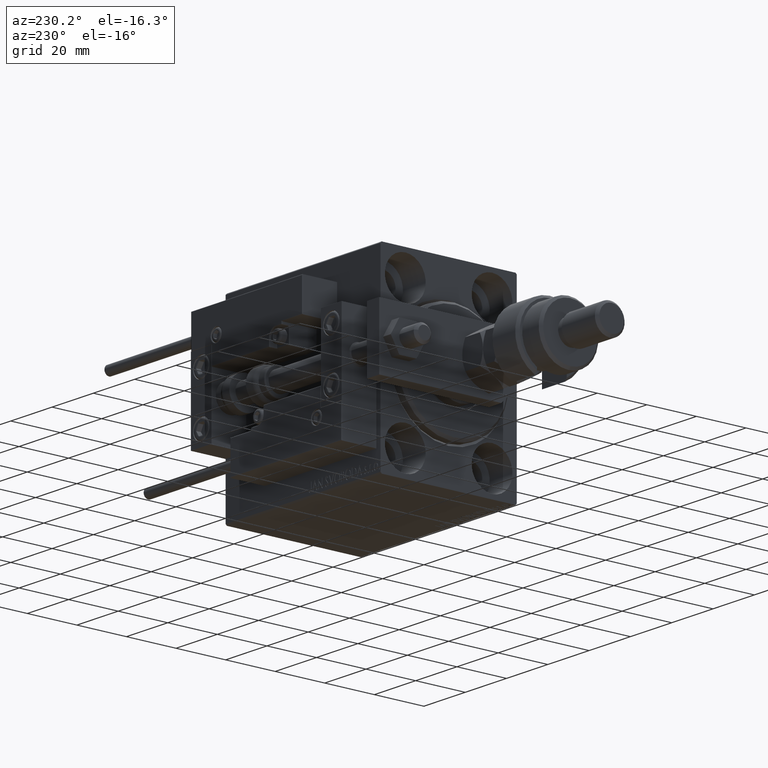
[diagram: clean part render]
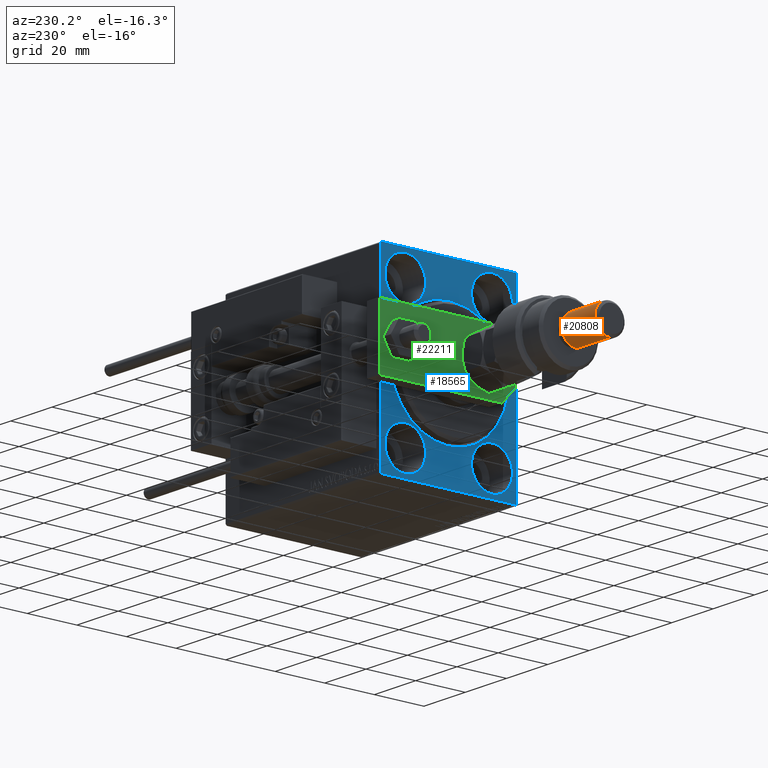
[diagram: same view with three faces highlighted in distinct colors, each labeled with its STEP entity id]
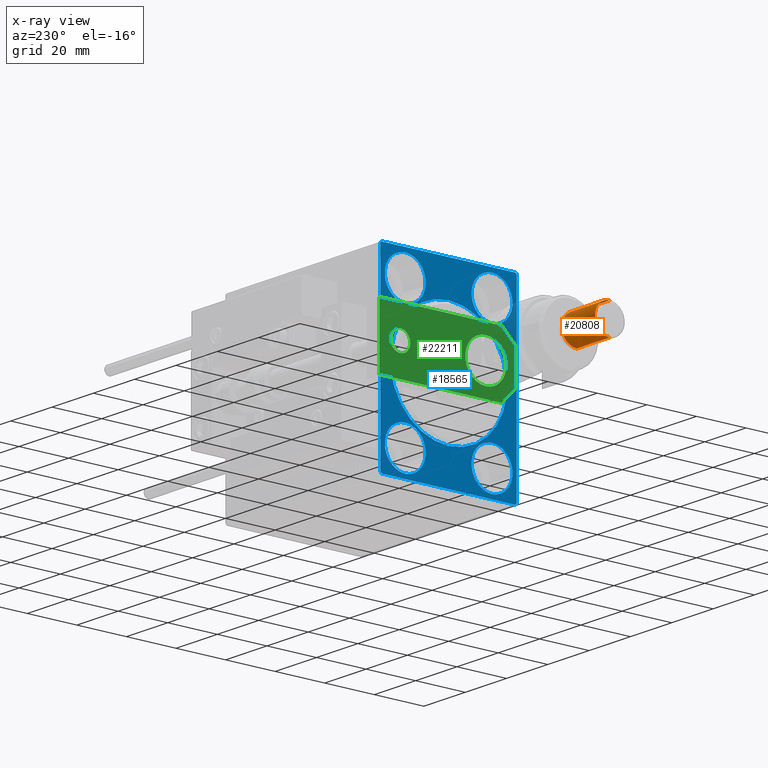
[diagram: x-ray of the same camera — body ghosted, the three highlighted faces saturated]
A machine part, auxiliary view with three faces highlighted in distinct colors.
The next image is the same camera in x-ray (body ghosted, the three faces saturated) — at least one of them is partly hidden behind the body in this view.
Their STEP definitions:

[orange] entity #20808 — the highlighted cylindrical surface (edge-blend (fillet) strip) has radius 6 mm, axis along (1, -0, -0).
#169 = LINE ( 'NONE', #20685, #19900 ) ;
#1006 = CARTESIAN_POINT ( 'NONE',  ( 6.000000000000000888, 7.347880794884120722E-16, 40.99999999999997868 ) ) ;
#1886 = CARTESIAN_POINT ( 'NONE',  ( 0.000000000000000000, 0.000000000000000000, 41.99999999999999289 ) ) ;
#3476 = CARTESIAN_POINT ( 'NONE',  ( -6.000000000000000888, 0.000000000000000000, 40.99999999999997868 ) ) ;
#3944 = EDGE_CURVE ( 'NONE', #24021, #12936, #32978, .T. ) ;
#4555 = DIRECTION ( 'NONE',  ( -0.000000000000000000, -0.000000000000000000, 1.000000000000000000 ) ) ;
#4980 = AXIS2_PLACEMENT_3D ( 'NONE', #36015, #13030, #21044 ) ;
#7207 = CYLINDRICAL_SURFACE ( 'NONE', #36477, 6.000000000000000888 ) ;
#8086 = VECTOR ( 'NONE', #38962, 1000.000000000000000 ) ;
#9888 = CARTESIAN_POINT ( 'NONE',  ( -6.000000000000000888, 0.000000000000000000, 41.99999999999999289 ) ) ;
#12936 = VERTEX_POINT ( 'NONE', #23998 ) ;
#13030 = DIRECTION ( 'NONE',  ( 0.000000000000000000, 0.000000000000000000, -1.000000000000000000 ) ) ;
#17201 = DIRECTION ( 'NONE',  ( -0.000000000000000000, -0.000000000000000000, -1.000000000000000000 ) ) ;
#17736 = CIRCLE ( 'NONE', #4980, 6.000000000000000888 ) ;
#17848 = ORIENTED_EDGE ( 'NONE', *, *, #46514, .F. ) ;
#19221 = FACE_OUTER_BOUND ( 'NONE', #38145, .T. ) ;
#19376 = AXIS2_PLACEMENT_3D ( 'NONE', #21353, #4555, #45604 ) ;
#19900 = VECTOR ( 'NONE', #17201, 1000.000000000000000 ) ;
#20685 = CARTESIAN_POINT ( 'NONE',  ( 6.000000000000000888, 7.347880794884120722E-16, 41.99999999999999289 ) ) ;
#20808 = ADVANCED_FACE ( 'NONE', ( #19221 ), #7207, .T. ) ;
#20954 = VERTEX_POINT ( 'NONE', #3476 ) ;
#20964 = EDGE_CURVE ( 'NONE', #20954, #39448, #17736, .T. ) ;
#21044 = DIRECTION ( 'NONE',  ( 1.000000000000000000, 0.000000000000000000, 0.000000000000000000 ) ) ;
#21353 = CARTESIAN_POINT ( 'NONE',  ( 0.000000000000000000, 0.000000000000000000, 24.99999999999999645 ) ) ;
#23998 = CARTESIAN_POINT ( 'NONE',  ( -6.000000000000000888, 0.000000000000000000, 24.99999999999999645 ) ) ;
#24021 = VERTEX_POINT ( 'NONE', #50968 ) ;
#32978 = CIRCLE ( 'NONE', #19376, 6.000000000000000888 ) ;
#36015 = CARTESIAN_POINT ( 'NONE',  ( 0.000000000000000000, 0.000000000000000000, 40.99999999999997868 ) ) ;
#36477 = AXIS2_PLACEMENT_3D ( 'NONE', #1886, #43205, #47217 ) ;
#36826 = ORIENTED_EDGE ( 'NONE', *, *, #20964, .T. ) ;
#38145 = EDGE_LOOP ( 'NONE', ( #36826, #51564, #47712, #17848 ) ) ;
#38962 = DIRECTION ( 'NONE',  ( -0.000000000000000000, -0.000000000000000000, -1.000000000000000000 ) ) ;
#39448 = VERTEX_POINT ( 'NONE', #1006 ) ;
#42906 = EDGE_CURVE ( 'NONE', #39448, #24021, #169, .T. ) ;
#43205 = DIRECTION ( 'NONE',  ( -0.000000000000000000, -0.000000000000000000, -1.000000000000000000 ) ) ;
#45604 = DIRECTION ( 'NONE',  ( 1.000000000000000000, 0.000000000000000000, 0.000000000000000000 ) ) ;
#46514 = EDGE_CURVE ( 'NONE', #20954, #12936, #50966, .T. ) ;
#47217 = DIRECTION ( 'NONE',  ( -1.000000000000000000, 0.000000000000000000, 0.000000000000000000 ) ) ;
#47712 = ORIENTED_EDGE ( 'NONE', *, *, #3944, .T. ) ;
#50966 = LINE ( 'NONE', #9888, #8086 ) ;
#50968 = CARTESIAN_POINT ( 'NONE',  ( 6.000000000000000888, 7.347880794884120722E-16, 24.99999999999999645 ) ) ;
#51564 = ORIENTED_EDGE ( 'NONE', *, *, #42906, .T. ) ;

[blue] entity #18565 — the highlighted planar face has unit normal (1, 0, 0).
#14 = CARTESIAN_POINT ( 'NONE',  ( 0.000000000000000000, 17.50000000000000355, 35.74999999999999289 ) ) ;
#18 = CARTESIAN_POINT ( 'NONE',  ( 0.000000000000000000, -27.00000000000000355, -37.50000000000000000 ) ) ;
#253 = LINE ( 'NONE', #33562, #20044 ) ;
#436 = CARTESIAN_POINT ( 'NONE',  ( 0.000000000000000000, 27.00000000000001066, 37.50000000000000711 ) ) ;
#900 = LINE ( 'NONE', #50750, #41547 ) ;
#1291 = DIRECTION ( 'NONE',  ( 0.000000000000000000, -9.251858538542970348E-17, 1.000000000000000000 ) ) ;
#1788 = AXIS2_PLACEMENT_3D ( 'NONE', #12944, #48249, #17209 ) ;
#1846 = DIRECTION ( 'NONE',  ( 0.000000000000000000, 0.000000000000000000, 1.000000000000000000 ) ) ;
#2080 = DIRECTION ( 'NONE',  ( 0.000000000000000000, 0.000000000000000000, 1.000000000000000000 ) ) ;
#2104 = CIRCLE ( 'NONE', #8910, 8.250000000000000000 ) ;
#2353 = CARTESIAN_POINT ( 'NONE',  ( 0.000000000000000000, 27.49999999999999645, 37.00000000000001421 ) ) ;
#2361 = EDGE_CURVE ( 'NONE', #4519, #42103, #17966, .T. ) ;
#2367 = CARTESIAN_POINT ( 'NONE',  ( 0.000000000000000000, -17.50000000000000355, -27.50000000000000355 ) ) ;
#2493 = DIRECTION ( 'NONE',  ( 0.000000000000000000, -1.000000000000000000, -1.261617073437677999E-16 ) ) ;
#2626 = VERTEX_POINT ( 'NONE', #38792 ) ;
#2784 = VECTOR ( 'NONE', #17642, 1000.000000000000114 ) ;
#3051 = ORIENTED_EDGE ( 'NONE', *, *, #30201, .T. ) ;
#3066 = CIRCLE ( 'NONE', #9868, 8.249999999999992895 ) ;
#4147 = CIRCLE ( 'NONE', #28856, 23.50000000000000355 ) ;
#4284 = LINE ( 'NONE', #4801, #30167 ) ;
#4305 = DIRECTION ( 'NONE',  ( -1.000000000000000000, 0.000000000000000000, 0.000000000000000000 ) ) ;
#4519 = VERTEX_POINT ( 'NONE', #436 ) ;
#4712 = ORIENTED_EDGE ( 'NONE', *, *, #47519, .T. ) ;
#4752 = CARTESIAN_POINT ( 'NONE',  ( 0.000000000000000000, -17.50000000000000355, -27.50000000000000355 ) ) ;
#4801 = CARTESIAN_POINT ( 'NONE',  ( 0.000000000000000000, 27.00000000000001066, 37.50000000000000711 ) ) ;
#4988 = EDGE_CURVE ( 'NONE', #2626, #28832, #900, .T. ) ;
#5326 = CIRCLE ( 'NONE', #32587, 8.250000000000000000 ) ;
#5522 = EDGE_LOOP ( 'NONE', ( #17994, #11900 ) ) ;
#6245 = ORIENTED_EDGE ( 'NONE', *, *, #30601, .F. ) ;
#6913 = EDGE_LOOP ( 'NONE', ( #30254, #45345 ) ) ;
#7330 = CIRCLE ( 'NONE', #10746, 8.249999999999992895 ) ;
#8047 = AXIS2_PLACEMENT_3D ( 'NONE', #46656, #9343, #10134 ) ;
#8088 = VERTEX_POINT ( 'NONE', #50556 ) ;
#8224 = DIRECTION ( 'NONE',  ( 0.000000000000000000, 0.000000000000000000, 1.000000000000000000 ) ) ;
#8420 = ORIENTED_EDGE ( 'NONE', *, *, #2361, .F. ) ;
#8910 = AXIS2_PLACEMENT_3D ( 'NONE', #4752, #28515, #8224 ) ;
#9343 = DIRECTION ( 'NONE',  ( -1.000000000000000000, 0.000000000000000000, 0.000000000000000000 ) ) ;
#9868 = AXIS2_PLACEMENT_3D ( 'NONE', #49118, #28862, #26643 ) ;
#10125 = VERTEX_POINT ( 'NONE', #29756 ) ;
#10134 = DIRECTION ( 'NONE',  ( 0.000000000000000000, 0.000000000000000000, 1.000000000000000000 ) ) ;
#10480 = CARTESIAN_POINT ( 'NONE',  ( 0.000000000000000000, -17.50000000000000355, -19.25000000000000355 ) ) ;
#10746 = AXIS2_PLACEMENT_3D ( 'NONE', #15368, #15098, #11622 ) ;
#11622 = DIRECTION ( 'NONE',  ( 0.000000000000000000, 0.000000000000000000, 1.000000000000000000 ) ) ;
#11703 = CARTESIAN_POINT ( 'NONE',  ( 0.000000000000000000, 2.877919977996280715E-15, -23.50000000000000355 ) ) ;
#11725 = CARTESIAN_POINT ( 'NONE',  ( 0.000000000000000000, -17.49999999999999645, 27.49999999999999645 ) ) ;
#11774 = DIRECTION ( 'NONE',  ( -0.000000000000000000, 0.7071067811865426878, -0.7071067811865524577 ) ) ;
#11900 = ORIENTED_EDGE ( 'NONE', *, *, #44490, .F. ) ;
#12338 = LINE ( 'NONE', #24606, #2784 ) ;
#12739 = VECTOR ( 'NONE', #46608, 1000.000000000000114 ) ;
#12944 = CARTESIAN_POINT ( 'NONE',  ( 0.000000000000000000, 0.000000000000000000, 0.000000000000000000 ) ) ;
#13064 = EDGE_CURVE ( 'NONE', #23443, #28623, #24061, .T. ) ;
#13248 = VECTOR ( 'NONE', #14220, 1000.000000000000114 ) ;
#13697 = CARTESIAN_POINT ( 'NONE',  ( 0.000000000000000000, 27.49999999999999645, 37.50000000000000711 ) ) ;
#13993 = FACE_BOUND ( 'NONE', #52501, .T. ) ;
#14082 = CARTESIAN_POINT ( 'NONE',  ( 0.000000000000000000, 17.49999999999999645, -27.50000000000000355 ) ) ;
#14220 = DIRECTION ( 'NONE',  ( -0.000000000000000000, 0.7071067811865474617, 0.7071067811865474617 ) ) ;
#14238 = VERTEX_POINT ( 'NONE', #38513 ) ;
#14342 = CARTESIAN_POINT ( 'NONE',  ( 0.000000000000000000, 17.49999999999999645, -19.25000000000000355 ) ) ;
#14680 = CARTESIAN_POINT ( 'NONE',  ( 0.000000000000000000, 27.00000000000000355, -37.50000000000000000 ) ) ;
#15098 = DIRECTION ( 'NONE',  ( -1.000000000000000000, 0.000000000000000000, 0.000000000000000000 ) ) ;
#15368 = CARTESIAN_POINT ( 'NONE',  ( 0.000000000000000000, -17.49999999999999645, 27.49999999999999645 ) ) ;
#15516 = EDGE_CURVE ( 'NONE', #29396, #20861, #45388, .T. ) ;
#15572 = ORIENTED_EDGE ( 'NONE', *, *, #23425, .T. ) ;
#16605 = CARTESIAN_POINT ( 'NONE',  ( 0.000000000000000000, -17.49999999999999645, 35.74999999999999289 ) ) ;
#17209 = DIRECTION ( 'NONE',  ( 0.000000000000000000, 0.000000000000000000, -1.000000000000000000 ) ) ;
#17642 = DIRECTION ( 'NONE',  ( 0.000000000000000000, -0.7071067811865474617, -0.7071067811865474617 ) ) ;
#17699 = CARTESIAN_POINT ( 'NONE',  ( 0.000000000000000000, -27.50000000000000355, -37.00000000000000000 ) ) ;
#17710 = ORIENTED_EDGE ( 'NONE', *, *, #45784, .F. ) ;
#17966 = LINE ( 'NONE', #13697, #26137 ) ;
#17994 = ORIENTED_EDGE ( 'NONE', *, *, #13064, .F. ) ;
#18264 = FACE_BOUND ( 'NONE', #5522, .T. ) ;
#18565 = ADVANCED_FACE ( 'NONE', ( #35328, #18264, #30535, #13993, #43324, #51604 ), #30804, .F. ) ;
#20044 = VECTOR ( 'NONE', #1291, 1000.000000000000000 ) ;
#20054 = EDGE_CURVE ( 'NONE', #38124, #14238, #50906, .T. ) ;
#20861 = VERTEX_POINT ( 'NONE', #14680 ) ;
#21248 = EDGE_CURVE ( 'NONE', #47386, #43942, #4147, .T. ) ;
#21275 = ORIENTED_EDGE ( 'NONE', *, *, #44677, .F. ) ;
#21507 = DIRECTION ( 'NONE',  ( 0.000000000000000000, 0.000000000000000000, -1.000000000000000000 ) ) ;
#23069 = DIRECTION ( 'NONE',  ( 0.000000000000000000, 0.000000000000000000, -1.000000000000000000 ) ) ;
#23365 = VERTEX_POINT ( 'NONE', #29297 ) ;
#23425 = EDGE_CURVE ( 'NONE', #29396, #28832, #37579, .T. ) ;
#23443 = VERTEX_POINT ( 'NONE', #14342 ) ;
#23709 = EDGE_LOOP ( 'NONE', ( #6245, #21275 ) ) ;
#23889 = ORIENTED_EDGE ( 'NONE', *, *, #20054, .F. ) ;
#24061 = CIRCLE ( 'NONE', #24928, 8.250000000000000000 ) ;
#24606 = CARTESIAN_POINT ( 'NONE',  ( 0.000000000000000000, 27.50000000000000355, -37.00000000000000000 ) ) ;
#24928 = AXIS2_PLACEMENT_3D ( 'NONE', #14082, #26368, #2080 ) ;
#24976 = CARTESIAN_POINT ( 'NONE',  ( 0.000000000000000000, 0.000000000000000000, 0.000000000000000000 ) ) ;
#25184 = ORIENTED_EDGE ( 'NONE', *, *, #48351, .F. ) ;
#25883 = AXIS2_PLACEMENT_3D ( 'NONE', #50136, #29066, #45585 ) ;
#26137 = VECTOR ( 'NONE', #2493, 1000.000000000000000 ) ;
#26368 = DIRECTION ( 'NONE',  ( -1.000000000000000000, 0.000000000000000000, 0.000000000000000000 ) ) ;
#26540 = DIRECTION ( 'NONE',  ( 1.000000000000000000, 0.000000000000000000, 0.000000000000000000 ) ) ;
#26643 = DIRECTION ( 'NONE',  ( 0.000000000000000000, 0.000000000000000000, 1.000000000000000000 ) ) ;
#26777 = EDGE_CURVE ( 'NONE', #43942, #47386, #36704, .T. ) ;
#27920 = AXIS2_PLACEMENT_3D ( 'NONE', #11725, #4305, #43727 ) ;
#28515 = DIRECTION ( 'NONE',  ( -1.000000000000000000, 0.000000000000000000, 0.000000000000000000 ) ) ;
#28623 = VERTEX_POINT ( 'NONE', #31352 ) ;
#28832 = VERTEX_POINT ( 'NONE', #17699 ) ;
#28856 = AXIS2_PLACEMENT_3D ( 'NONE', #24976, #46035, #21507 ) ;
#28862 = DIRECTION ( 'NONE',  ( -1.000000000000000000, 0.000000000000000000, 0.000000000000000000 ) ) ;
#29066 = DIRECTION ( 'NONE',  ( -1.000000000000000000, 0.000000000000000000, 0.000000000000000000 ) ) ;
#29297 = CARTESIAN_POINT ( 'NONE',  ( 0.000000000000000000, 27.50000000000000355, -37.00000000000000000 ) ) ;
#29396 = VERTEX_POINT ( 'NONE', #18 ) ;
#29690 = DIRECTION ( 'NONE',  ( 0.000000000000000000, 0.000000000000000000, -1.000000000000000000 ) ) ;
#29712 = CARTESIAN_POINT ( 'NONE',  ( 0.000000000000000000, -27.50000000000000355, 37.00000000000001421 ) ) ;
#29756 = CARTESIAN_POINT ( 'NONE',  ( 0.000000000000000000, -17.50000000000000355, -35.75000000000000711 ) ) ;
#29835 = CARTESIAN_POINT ( 'NONE',  ( 0.000000000000000000, -27.00000000000000355, -37.50000000000000000 ) ) ;
#30008 = CARTESIAN_POINT ( 'NONE',  ( 0.000000000000000000, 0.000000000000000000, 0.000000000000000000 ) ) ;
#30167 = VECTOR ( 'NONE', #11774, 1000.000000000000000 ) ;
#30201 = EDGE_CURVE ( 'NONE', #23365, #20861, #12338, .T. ) ;
#30254 = ORIENTED_EDGE ( 'NONE', *, *, #21248, .T. ) ;
#30535 = FACE_BOUND ( 'NONE', #40169, .T. ) ;
#30601 = EDGE_CURVE ( 'NONE', #49205, #10125, #5326, .T. ) ;
#30804 = PLANE ( 'NONE',  #43199 ) ;
#30981 = EDGE_LOOP ( 'NONE', ( #43524, #4712, #8420, #31582, #17710, #3051, #39284, #15572 ) ) ;
#31352 = CARTESIAN_POINT ( 'NONE',  ( 0.000000000000000000, 17.49999999999999645, -35.75000000000000711 ) ) ;
#31582 = ORIENTED_EDGE ( 'NONE', *, *, #43569, .T. ) ;
#32419 = CARTESIAN_POINT ( 'NONE',  ( 0.000000000000000000, 0.000000000000000000, 23.50000000000000355 ) ) ;
#32587 = AXIS2_PLACEMENT_3D ( 'NONE', #2367, #46631, #1846 ) ;
#33000 = VECTOR ( 'NONE', #33129, 1000.000000000000000 ) ;
#33129 = DIRECTION ( 'NONE',  ( 0.000000000000000000, 1.000000000000000000, 0.000000000000000000 ) ) ;
#33562 = CARTESIAN_POINT ( 'NONE',  ( 0.000000000000000000, 27.50000000000000355, -37.50000000000000000 ) ) ;
#34177 = VERTEX_POINT ( 'NONE', #14 ) ;
#35328 = FACE_BOUND ( 'NONE', #6913, .T. ) ;
#36086 = EDGE_CURVE ( 'NONE', #34177, #8088, #47158, .T. ) ;
#36704 = CIRCLE ( 'NONE', #1788, 23.50000000000000355 ) ;
#37579 = LINE ( 'NONE', #29835, #12739 ) ;
#38124 = VERTEX_POINT ( 'NONE', #16605 ) ;
#38513 = CARTESIAN_POINT ( 'NONE',  ( 0.000000000000000000, -17.49999999999999645, 19.25000000000000000 ) ) ;
#38792 = CARTESIAN_POINT ( 'NONE',  ( 0.000000000000000000, -27.50000000000000355, 37.00000000000001421 ) ) ;
#39284 = ORIENTED_EDGE ( 'NONE', *, *, #15516, .F. ) ;
#39389 = ORIENTED_EDGE ( 'NONE', *, *, #47836, .F. ) ;
#40169 = EDGE_LOOP ( 'NONE', ( #23889, #25184 ) ) ;
#40572 = ORIENTED_EDGE ( 'NONE', *, *, #36086, .F. ) ;
#41547 = VECTOR ( 'NONE', #29690, 1000.000000000000000 ) ;
#42103 = VERTEX_POINT ( 'NONE', #43827 ) ;
#43016 = LINE ( 'NONE', #29712, #13248 ) ;
#43199 = AXIS2_PLACEMENT_3D ( 'NONE', #30008, #26540, #23069 ) ;
#43324 = FACE_BOUND ( 'NONE', #23709, .T. ) ;
#43524 = ORIENTED_EDGE ( 'NONE', *, *, #4988, .F. ) ;
#43569 = EDGE_CURVE ( 'NONE', #4519, #50808, #4284, .T. ) ;
#43727 = DIRECTION ( 'NONE',  ( 0.000000000000000000, 0.000000000000000000, 1.000000000000000000 ) ) ;
#43827 = CARTESIAN_POINT ( 'NONE',  ( 0.000000000000000000, -27.00000000000001776, 37.50000000000000000 ) ) ;
#43942 = VERTEX_POINT ( 'NONE', #11703 ) ;
#44490 = EDGE_CURVE ( 'NONE', #28623, #23443, #48932, .T. ) ;
#44677 = EDGE_CURVE ( 'NONE', #10125, #49205, #2104, .T. ) ;
#45345 = ORIENTED_EDGE ( 'NONE', *, *, #26777, .T. ) ;
#45388 = LINE ( 'NONE', #45915, #33000 ) ;
#45585 = DIRECTION ( 'NONE',  ( 0.000000000000000000, 0.000000000000000000, 1.000000000000000000 ) ) ;
#45784 = EDGE_CURVE ( 'NONE', #23365, #50808, #253, .T. ) ;
#45915 = CARTESIAN_POINT ( 'NONE',  ( 0.000000000000000000, -27.50000000000000355, -37.50000000000000000 ) ) ;
#46035 = DIRECTION ( 'NONE',  ( 1.000000000000000000, 0.000000000000000000, 0.000000000000000000 ) ) ;
#46608 = DIRECTION ( 'NONE',  ( -0.000000000000000000, -0.7071067811865474617, 0.7071067811865474617 ) ) ;
#46631 = DIRECTION ( 'NONE',  ( -1.000000000000000000, 0.000000000000000000, 0.000000000000000000 ) ) ;
#46656 = CARTESIAN_POINT ( 'NONE',  ( 0.000000000000000000, 17.49999999999999645, -27.50000000000000355 ) ) ;
#47158 = CIRCLE ( 'NONE', #25883, 8.249999999999992895 ) ;
#47386 = VERTEX_POINT ( 'NONE', #32419 ) ;
#47519 = EDGE_CURVE ( 'NONE', #2626, #42103, #43016, .T. ) ;
#47836 = EDGE_CURVE ( 'NONE', #8088, #34177, #3066, .T. ) ;
#48249 = DIRECTION ( 'NONE',  ( 1.000000000000000000, 0.000000000000000000, 0.000000000000000000 ) ) ;
#48351 = EDGE_CURVE ( 'NONE', #14238, #38124, #7330, .T. ) ;
#48932 = CIRCLE ( 'NONE', #8047, 8.250000000000000000 ) ;
#49118 = CARTESIAN_POINT ( 'NONE',  ( 0.000000000000000000, 17.50000000000000355, 27.49999999999999645 ) ) ;
#49205 = VERTEX_POINT ( 'NONE', #10480 ) ;
#50136 = CARTESIAN_POINT ( 'NONE',  ( 0.000000000000000000, 17.50000000000000355, 27.49999999999999645 ) ) ;
#50556 = CARTESIAN_POINT ( 'NONE',  ( 0.000000000000000000, 17.50000000000000355, 19.25000000000000000 ) ) ;
#50750 = CARTESIAN_POINT ( 'NONE',  ( 0.000000000000000000, -27.50000000000000355, 37.50000000000000000 ) ) ;
#50808 = VERTEX_POINT ( 'NONE', #2353 ) ;
#50906 = CIRCLE ( 'NONE', #27920, 8.249999999999992895 ) ;
#51604 = FACE_OUTER_BOUND ( 'NONE', #30981, .T. ) ;
#52501 = EDGE_LOOP ( 'NONE', ( #40572, #39389 ) ) ;

[green] entity #22211 — the highlighted planar face has unit normal (-1, 0, 0).
#1652 = ORIENTED_EDGE ( 'NONE', *, *, #5255, .T. ) ;
#2588 = EDGE_CURVE ( 'NONE', #36489, #29510, #47050, .T. ) ;
#4854 = EDGE_CURVE ( 'NONE', #29510, #17346, #49164, .T. ) ;
#5255 = EDGE_CURVE ( 'NONE', #26004, #50090, #25028, .T. ) ;
#6317 = CARTESIAN_POINT ( 'NONE',  ( 12.50000000000000000, 55.00000000000000000, 6.000000000000000000 ) ) ;
#6446 = VERTEX_POINT ( 'NONE', #31816 ) ;
#6488 = CARTESIAN_POINT ( 'NONE',  ( -12.50000000000000355, 5.660000000000005471, 6.000000000000000000 ) ) ;
#7415 = CARTESIAN_POINT ( 'NONE',  ( 0.000000000000000000, 0.000000000000000000, 6.000000000000000000 ) ) ;
#9137 = EDGE_CURVE ( 'NONE', #51391, #42039, #28915, .T. ) ;
#9533 = DIRECTION ( 'NONE',  ( 0.000000000000000000, 0.000000000000000000, 1.000000000000000000 ) ) ;
#9791 = CARTESIAN_POINT ( 'NONE',  ( -9.629649721936179265E-32, 11.99999999999999645, 6.000000000000000000 ) ) ;
#10037 = CARTESIAN_POINT ( 'NONE',  ( -9.629649721936179265E-32, 11.99999999999999645, 6.000000000000000000 ) ) ;
#11226 = EDGE_CURVE ( 'NONE', #6446, #36489, #28445, .T. ) ;
#11432 = EDGE_CURVE ( 'NONE', #50090, #6446, #19079, .T. ) ;
#11678 = DIRECTION ( 'NONE',  ( 1.000000000000000000, 0.000000000000000000, 0.000000000000000000 ) ) ;
#12371 = CARTESIAN_POINT ( 'NONE',  ( 12.50000000000000355, 4.814824860968089633E-32, 6.000000000000000000 ) ) ;
#13804 = DIRECTION ( 'NONE',  ( 1.000000000000000000, 0.000000000000000000, 0.000000000000000000 ) ) ;
#13950 = CARTESIAN_POINT ( 'NONE',  ( 4.000000000000000888, 46.50000000000000000, 6.000000000000000000 ) ) ;
#13996 = CARTESIAN_POINT ( 'NONE',  ( -12.50000000000000355, 4.814824860968089633E-32, 6.000000000000000000 ) ) ;
#14357 = CARTESIAN_POINT ( 'NONE',  ( -1.432611055310774642E-16, 46.50000000000000000, 6.000000000000000000 ) ) ;
#15334 = ORIENTED_EDGE ( 'NONE', *, *, #2588, .T. ) ;
#15538 = AXIS2_PLACEMENT_3D ( 'NONE', #14357, #46366, #42892 ) ;
#16092 = ORIENTED_EDGE ( 'NONE', *, *, #47795, .T. ) ;
#16675 = CIRCLE ( 'NONE', #28611, 8.250000000000000000 ) ;
#17346 = VERTEX_POINT ( 'NONE', #6317 ) ;
#17679 = VECTOR ( 'NONE', #28645, 1000.000000000000000 ) ;
#18907 = FACE_BOUND ( 'NONE', #31867, .T. ) ;
#19079 = LINE ( 'NONE', #23597, #27295 ) ;
#19405 = AXIS2_PLACEMENT_3D ( 'NONE', #9791, #9533, #29806 ) ;
#20230 = VECTOR ( 'NONE', #44044, 1000.000000000000000 ) ;
#20470 = DIRECTION ( 'NONE',  ( -0.000000000000000000, 0.000000000000000000, 1.000000000000000000 ) ) ;
#20545 = ORIENTED_EDGE ( 'NONE', *, *, #11432, .T. ) ;
#21035 = CARTESIAN_POINT ( 'NONE',  ( -12.49999999999999822, 55.00000000000000000, 6.000000000000000000 ) ) ;
#22002 = DIRECTION ( 'NONE',  ( 1.000000000000000000, 0.000000000000000000, 0.000000000000000000 ) ) ;
#22009 = CARTESIAN_POINT ( 'NONE',  ( 8.250000000000000000, 11.99999999999999822, 6.000000000000000000 ) ) ;
#22211 = ADVANCED_FACE ( 'NONE', ( #18907, #35163, #51441 ), #24208, .T. ) ;
#22707 = VECTOR ( 'NONE', #26788, 1000.000000000000114 ) ;
#22711 = VERTEX_POINT ( 'NONE', #22009 ) ;
#23597 = CARTESIAN_POINT ( 'NONE',  ( -3.420000000000013696, -3.420000000000006146, 6.000000000000000000 ) ) ;
#24208 = PLANE ( 'NONE',  #35718 ) ;
#25028 = LINE ( 'NONE', #21035, #20230 ) ;
#25385 = EDGE_LOOP ( 'NONE', ( #1652, #20545, #39273, #15334, #34001, #16092 ) ) ;
#26004 = VERTEX_POINT ( 'NONE', #26536 ) ;
#26529 = CARTESIAN_POINT ( 'NONE',  ( 3.419999999999990603, -3.419999999999999485, 6.000000000000000000 ) ) ;
#26536 = CARTESIAN_POINT ( 'NONE',  ( -12.49999999999999822, 55.00000000000000000, 6.000000000000000000 ) ) ;
#26788 = DIRECTION ( 'NONE',  ( 0.7071067811865483499, 0.7071067811865465735, -0.000000000000000000 ) ) ;
#27295 = VECTOR ( 'NONE', #39870, 1000.000000000000000 ) ;
#28299 = CIRCLE ( 'NONE', #15538, 4.000000000000000888 ) ;
#28445 = LINE ( 'NONE', #13996, #40913 ) ;
#28611 = AXIS2_PLACEMENT_3D ( 'NONE', #10037, #42563, #30841 ) ;
#28645 = DIRECTION ( 'NONE',  ( -6.308085367188389994E-17, 1.000000000000000000, 0.000000000000000000 ) ) ;
#28915 = CIRCLE ( 'NONE', #33174, 4.000000000000000888 ) ;
#29216 = ORIENTED_EDGE ( 'NONE', *, *, #51744, .F. ) ;
#29510 = VERTEX_POINT ( 'NONE', #45837 ) ;
#29681 = EDGE_CURVE ( 'NONE', #42039, #51391, #28299, .T. ) ;
#29806 = DIRECTION ( 'NONE',  ( 1.000000000000000000, 0.000000000000000000, 0.000000000000000000 ) ) ;
#29851 = DIRECTION ( 'NONE',  ( -1.000000000000000000, 0.000000000000000000, 0.000000000000000000 ) ) ;
#30115 = CARTESIAN_POINT ( 'NONE',  ( -8.250000000000000000, 11.99999999999999645, 6.000000000000000000 ) ) ;
#30841 = DIRECTION ( 'NONE',  ( 1.000000000000000000, 0.000000000000000000, 0.000000000000000000 ) ) ;
#31816 = CARTESIAN_POINT ( 'NONE',  ( -6.840000000000012292, 4.814824860968089633E-32, 6.000000000000000000 ) ) ;
#31867 = EDGE_LOOP ( 'NONE', ( #48621, #32039 ) ) ;
#32039 = ORIENTED_EDGE ( 'NONE', *, *, #29681, .F. ) ;
#32041 = VECTOR ( 'NONE', #29851, 1000.000000000000000 ) ;
#33174 = AXIS2_PLACEMENT_3D ( 'NONE', #49285, #50361, #13804 ) ;
#33897 = CIRCLE ( 'NONE', #19405, 8.250000000000000000 ) ;
#34001 = ORIENTED_EDGE ( 'NONE', *, *, #4854, .T. ) ;
#34114 = LINE ( 'NONE', #40874, #32041 ) ;
#35163 = FACE_OUTER_BOUND ( 'NONE', #25385, .T. ) ;
#35718 = AXIS2_PLACEMENT_3D ( 'NONE', #7415, #20470, #11678 ) ;
#36489 = VERTEX_POINT ( 'NONE', #39758 ) ;
#39273 = ORIENTED_EDGE ( 'NONE', *, *, #11226, .T. ) ;
#39758 = CARTESIAN_POINT ( 'NONE',  ( 6.839999999999998970, 4.814824860968089633E-32, 6.000000000000000000 ) ) ;
#39870 = DIRECTION ( 'NONE',  ( 0.7071067811865467956, -0.7071067811865483499, 0.000000000000000000 ) ) ;
#40874 = CARTESIAN_POINT ( 'NONE',  ( 12.50000000000000000, 55.00000000000000000, 6.000000000000000000 ) ) ;
#40913 = VECTOR ( 'NONE', #22002, 1000.000000000000000 ) ;
#42039 = VERTEX_POINT ( 'NONE', #13950 ) ;
#42563 = DIRECTION ( 'NONE',  ( 0.000000000000000000, 0.000000000000000000, 1.000000000000000000 ) ) ;
#42892 = DIRECTION ( 'NONE',  ( 1.000000000000000000, 0.000000000000000000, 0.000000000000000000 ) ) ;
#44044 = DIRECTION ( 'NONE',  ( -9.462128050782584375E-17, -1.000000000000000000, 0.000000000000000000 ) ) ;
#44617 = EDGE_LOOP ( 'NONE', ( #45653, #29216 ) ) ;
#45653 = ORIENTED_EDGE ( 'NONE', *, *, #48274, .F. ) ;
#45837 = CARTESIAN_POINT ( 'NONE',  ( 12.50000000000000355, 5.659999999999991260, 6.000000000000000000 ) ) ;
#46366 = DIRECTION ( 'NONE',  ( 0.000000000000000000, 0.000000000000000000, 1.000000000000000000 ) ) ;
#47050 = LINE ( 'NONE', #26529, #22707 ) ;
#47180 = CARTESIAN_POINT ( 'NONE',  ( -4.000000000000000888, 46.50000000000000000, 6.000000000000000000 ) ) ;
#47721 = VERTEX_POINT ( 'NONE', #30115 ) ;
#47795 = EDGE_CURVE ( 'NONE', #17346, #26004, #34114, .T. ) ;
#48274 = EDGE_CURVE ( 'NONE', #47721, #22711, #16675, .T. ) ;
#48621 = ORIENTED_EDGE ( 'NONE', *, *, #9137, .F. ) ;
#49164 = LINE ( 'NONE', #12371, #17679 ) ;
#49285 = CARTESIAN_POINT ( 'NONE',  ( -1.432611055310774642E-16, 46.50000000000000000, 6.000000000000000000 ) ) ;
#50090 = VERTEX_POINT ( 'NONE', #6488 ) ;
#50361 = DIRECTION ( 'NONE',  ( 0.000000000000000000, 0.000000000000000000, 1.000000000000000000 ) ) ;
#51391 = VERTEX_POINT ( 'NONE', #47180 ) ;
#51441 = FACE_BOUND ( 'NONE', #44617, .T. ) ;
#51744 = EDGE_CURVE ( 'NONE', #22711, #47721, #33897, .T. ) ;